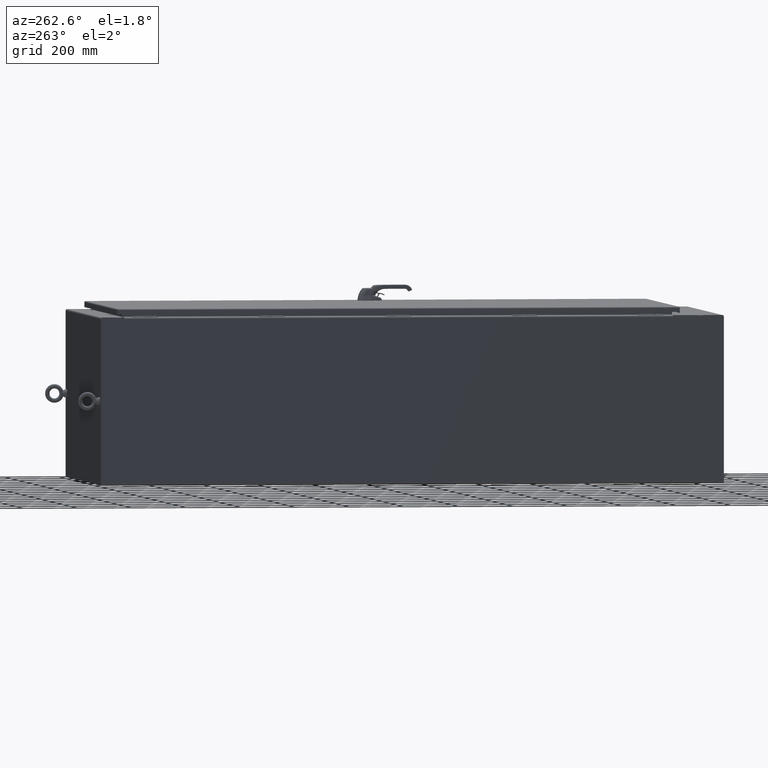
[diagram: clean part render]
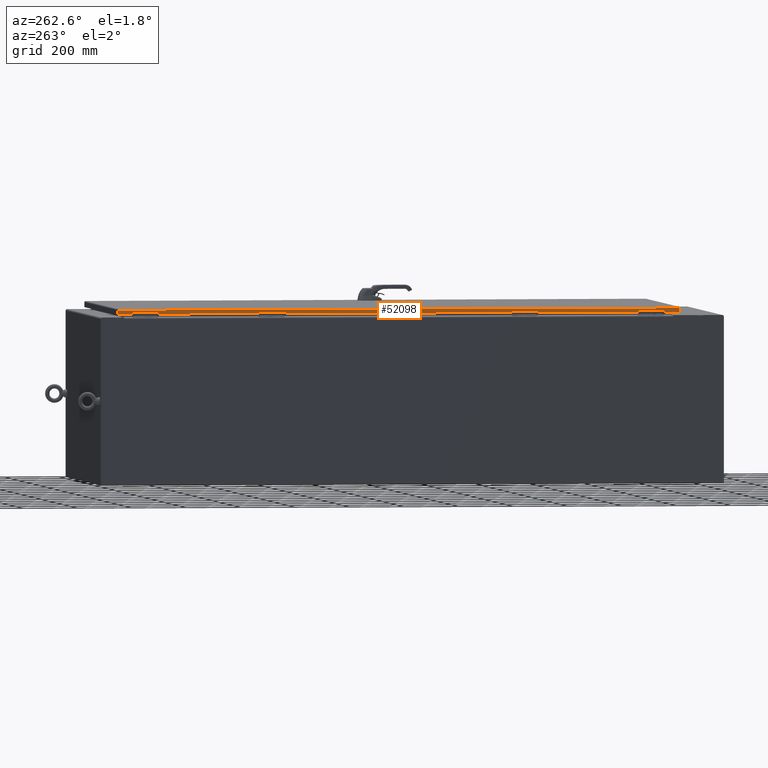
[diagram: same view with one face highlighted and labeled with its STEP entity id]
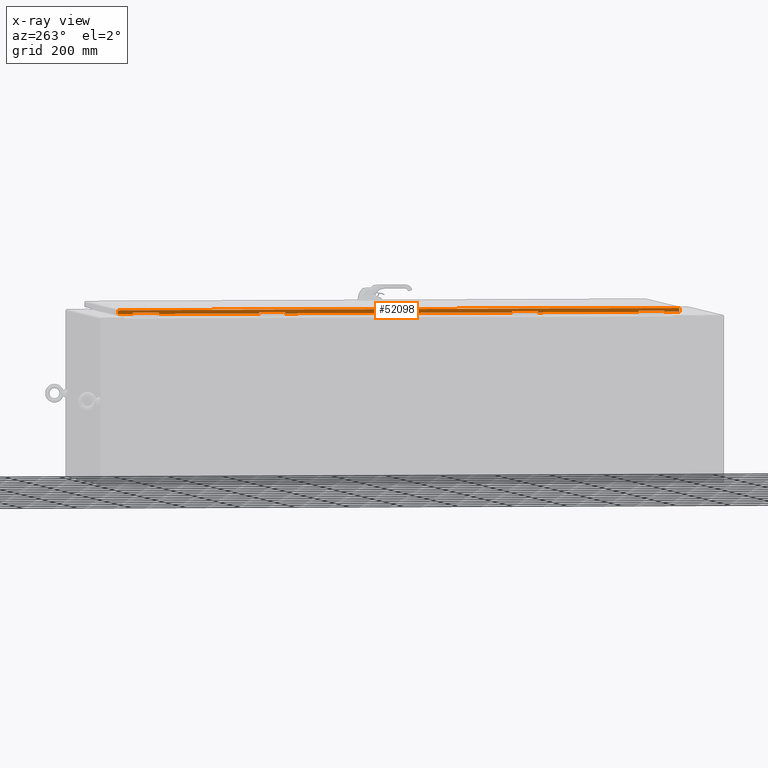
[diagram: x-ray of the same camera — body ghosted, the highlighted face saturated]
A machine part, auxiliary view. The second image highlights one B-rep face of the part: STEP entity #52098.
The next image is the same camera in x-ray: the body ghosted, the highlighted face saturated — about 0% of this face is hidden behind the body in this view.
In plain terms, the highlighted planar face has unit normal (-1, 0, -0).
Its self-contained STEP definition (entity closure, byte-faithful):
#3565=PLANE('',#57366);
#5111=FACE_OUTER_BOUND('',#8391,.T.);
#8391=EDGE_LOOP('',(#37602,#37603,#37604,#37605,#37606,#37607,#37608,#37609,
#37610,#37611,#37612,#37613,#37614,#37615,#37616,#37617,#37618,#37619,#37620,
#37621,#37622,#37623,#37624,#37625));
#11985=LINE('',#85243,#15640);
#11989=LINE('',#85251,#15644);
#11992=LINE('',#85257,#15647);
#11995=LINE('',#85264,#15650);
#11999=LINE('',#85272,#15654);
#12002=LINE('',#85278,#15657);
#12005=LINE('',#85285,#15660);
#12009=LINE('',#85293,#15664);
#12012=LINE('',#85299,#15667);
#12015=LINE('',#85306,#15670);
#12019=LINE('',#85314,#15674);
#12022=LINE('',#85320,#15677);
#12037=LINE('',#85347,#15692);
#12040=LINE('',#85352,#15695);
#12041=LINE('',#85354,#15696);
#12042=LINE('',#85356,#15697);
#12043=LINE('',#85360,#15698);
#12046=LINE('',#85364,#15701);
#12047=LINE('',#85367,#15702);
#12049=LINE('',#85370,#15704);
#12070=LINE('',#85440,#15725);
#12071=LINE('',#85443,#15726);
#12072=LINE('',#85445,#15727);
#12073=LINE('',#85446,#15728);
#15640=VECTOR('',#65726,0.393700787401575);
#15644=VECTOR('',#65732,0.393700787401575);
#15647=VECTOR('',#65737,0.393700787401575);
#15650=VECTOR('',#65742,0.393700787401575);
#15654=VECTOR('',#65748,0.393700787401575);
#15657=VECTOR('',#65753,0.393700787401575);
#15660=VECTOR('',#65758,0.393700787401575);
#15664=VECTOR('',#65764,0.393700787401575);
#15667=VECTOR('',#65769,0.393700787401575);
#15670=VECTOR('',#65774,0.393700787401575);
#15674=VECTOR('',#65780,0.393700787401575);
#15677=VECTOR('',#65785,0.393700787401575);
#15692=VECTOR('',#65804,0.393700787401575);
#15695=VECTOR('',#65809,0.393700787401575);
#15696=VECTOR('',#65812,0.393700787401575);
#15697=VECTOR('',#65815,0.393700787401575);
#15698=VECTOR('',#65818,0.393700787401575);
#15701=VECTOR('',#65823,0.393700787401575);
#15702=VECTOR('',#65826,0.393700787401575);
#15704=VECTOR('',#65830,0.393700787401575);
#15725=VECTOR('',#65903,0.393700787401575);
#15726=VECTOR('',#65906,0.393700787401575);
#15727=VECTOR('',#65907,0.393700787401575);
#15728=VECTOR('',#65908,0.393700787401575);
#22429=VERTEX_POINT('',#85241);
#22430=VERTEX_POINT('',#85242);
#22433=VERTEX_POINT('',#85250);
#22435=VERTEX_POINT('',#85256);
#22437=VERTEX_POINT('',#85262);
#22438=VERTEX_POINT('',#85263);
#22441=VERTEX_POINT('',#85271);
#22443=VERTEX_POINT('',#85277);
#22445=VERTEX_POINT('',#85283);
#22446=VERTEX_POINT('',#85284);
#22449=VERTEX_POINT('',#85292);
#22451=VERTEX_POINT('',#85298);
#22453=VERTEX_POINT('',#85304);
#22454=VERTEX_POINT('',#85305);
#22457=VERTEX_POINT('',#85313);
#22459=VERTEX_POINT('',#85319);
#22469=VERTEX_POINT('',#85346);
#22470=VERTEX_POINT('',#85350);
#22471=VERTEX_POINT('',#85358);
#22472=VERTEX_POINT('',#85359);
#22473=VERTEX_POINT('',#85366);
#22496=VERTEX_POINT('',#85438);
#22497=VERTEX_POINT('',#85442);
#22498=VERTEX_POINT('',#85444);
#27897=EDGE_CURVE('',#22429,#22430,#11985,.T.);
#27901=EDGE_CURVE('',#22433,#22429,#11989,.T.);
#27904=EDGE_CURVE('',#22430,#22435,#11992,.T.);
#27907=EDGE_CURVE('',#22437,#22438,#11995,.T.);
#27911=EDGE_CURVE('',#22441,#22437,#11999,.T.);
#27914=EDGE_CURVE('',#22438,#22443,#12002,.T.);
#27917=EDGE_CURVE('',#22445,#22446,#12005,.T.);
#27921=EDGE_CURVE('',#22449,#22445,#12009,.T.);
#27924=EDGE_CURVE('',#22446,#22451,#12012,.T.);
#27927=EDGE_CURVE('',#22453,#22454,#12015,.T.);
#27931=EDGE_CURVE('',#22457,#22453,#12019,.T.);
#27934=EDGE_CURVE('',#22454,#22459,#12022,.T.);
#27949=EDGE_CURVE('',#22469,#22433,#12037,.T.);
#27952=EDGE_CURVE('',#22459,#22470,#12040,.T.);
#27953=EDGE_CURVE('',#22451,#22457,#12041,.T.);
#27954=EDGE_CURVE('',#22443,#22449,#12042,.T.);
#27955=EDGE_CURVE('',#22471,#22472,#12043,.T.);
#27958=EDGE_CURVE('',#22470,#22471,#12046,.T.);
#27959=EDGE_CURVE('',#22472,#22473,#12047,.T.);
#27961=EDGE_CURVE('',#22435,#22441,#12049,.T.);
#27996=EDGE_CURVE('',#22473,#22496,#12070,.T.);
#27997=EDGE_CURVE('',#22497,#22496,#12071,.T.);
#27998=EDGE_CURVE('',#22497,#22498,#12072,.T.);
#27999=EDGE_CURVE('',#22469,#22498,#12073,.T.);
#37602=ORIENTED_EDGE('',*,*,#27904,.T.);
#37603=ORIENTED_EDGE('',*,*,#27961,.T.);
#37604=ORIENTED_EDGE('',*,*,#27911,.T.);
#37605=ORIENTED_EDGE('',*,*,#27907,.T.);
#37606=ORIENTED_EDGE('',*,*,#27914,.T.);
#37607=ORIENTED_EDGE('',*,*,#27954,.T.);
#37608=ORIENTED_EDGE('',*,*,#27921,.T.);
#37609=ORIENTED_EDGE('',*,*,#27917,.T.);
#37610=ORIENTED_EDGE('',*,*,#27924,.T.);
#37611=ORIENTED_EDGE('',*,*,#27953,.T.);
#37612=ORIENTED_EDGE('',*,*,#27931,.T.);
#37613=ORIENTED_EDGE('',*,*,#27927,.T.);
#37614=ORIENTED_EDGE('',*,*,#27934,.T.);
#37615=ORIENTED_EDGE('',*,*,#27952,.T.);
#37616=ORIENTED_EDGE('',*,*,#27958,.T.);
#37617=ORIENTED_EDGE('',*,*,#27955,.T.);
#37618=ORIENTED_EDGE('',*,*,#27959,.T.);
#37619=ORIENTED_EDGE('',*,*,#27996,.T.);
#37620=ORIENTED_EDGE('',*,*,#27997,.F.);
#37621=ORIENTED_EDGE('',*,*,#27998,.T.);
#37622=ORIENTED_EDGE('',*,*,#27999,.F.);
#37623=ORIENTED_EDGE('',*,*,#27949,.T.);
#37624=ORIENTED_EDGE('',*,*,#27901,.T.);
#37625=ORIENTED_EDGE('',*,*,#27897,.T.);
#52098=ADVANCED_FACE('',(#5111),#3565,.T.);
#57366=AXIS2_PLACEMENT_3D('',#85441,#65904,#65905);
#65726=DIRECTION('',(2.74793580351904E-16,-1.,3.49174387004674E-16));
#65732=DIRECTION('',(-2.30090906336254E-14,3.44654981345447E-17,1.));
#65737=DIRECTION('',(2.30090906336254E-14,-3.44654981345447E-17,-1.));
#65742=DIRECTION('',(2.74793580351904E-16,-1.,3.49174387004674E-16));
#65748=DIRECTION('',(-2.30090906336254E-14,3.44654981345447E-17,1.));
#65753=DIRECTION('',(2.30090906336254E-14,-3.44654981345447E-17,-1.));
#65758=DIRECTION('',(2.74793580351904E-16,-1.,3.49174387004674E-16));
#65764=DIRECTION('',(-2.30090906336254E-14,3.44654981345447E-17,1.));
#65769=DIRECTION('',(2.30090906336254E-14,-3.44654981345447E-17,-1.));
#65774=DIRECTION('',(2.74793580351904E-16,-1.,3.49174387004674E-16));
#65780=DIRECTION('',(-2.30090906336254E-14,3.44654981345447E-17,1.));
#65785=DIRECTION('',(2.30090906336254E-14,-3.44654981345447E-17,-1.));
#65804=DIRECTION('',(2.7479358035191E-16,-1.,9.37030730533105E-17));
#65809=DIRECTION('',(2.7479358035191E-16,-1.,9.37030730533105E-17));
#65812=DIRECTION('',(2.7479358035191E-16,-1.,9.37030730533105E-17));
#65815=DIRECTION('',(2.7479358035191E-16,-1.,9.37030730533105E-17));
#65818=DIRECTION('',(2.74793580351904E-16,-1.,3.49174387004674E-16));
#65823=DIRECTION('',(-2.30090906336254E-14,3.44654981345447E-17,1.));
#65826=DIRECTION('',(2.30090906336254E-14,-3.44654981345447E-17,-1.));
#65830=DIRECTION('',(2.7479358035191E-16,-1.,9.37030730533105E-17));
#65903=DIRECTION('',(2.7479358035191E-16,-1.,9.37030730533105E-17));
#65904=DIRECTION('center_axis',(-1.,-2.74793580351912E-16,-2.30090906336254E-14));
#65905=DIRECTION('ref_axis',(-2.30090906336254E-14,-2.75014424136383E-16,
1.));
#65906=DIRECTION('',(2.30314065722459E-14,6.31088724176809E-30,-1.));
#65907=DIRECTION('',(-2.74793580351912E-16,1.,5.08634298896052E-33));
#65908=DIRECTION('',(-2.30314065722459E-14,-6.31088724176809E-30,1.));
#85241=CARTESIAN_POINT('',(-18.40625,38.4375,-0.45849999999961));
#85242=CARTESIAN_POINT('',(-18.40625,34.6875,-0.458499999999609));
#85243=CARTESIAN_POINT('',(-18.40625,19.21875,-0.458499999999603));
#85250=CARTESIAN_POINT('',(-18.40625,38.4375,-0.64599999999961));
#85251=CARTESIAN_POINT('',(-18.40625,38.4375,-0.487267101633959));
#85256=CARTESIAN_POINT('',(-18.40625,34.6875,-0.645999999999609));
#85257=CARTESIAN_POINT('',(-18.40625,34.6875,-0.393517101633959));
#85262=CARTESIAN_POINT('',(-18.40625,20.15625,-0.458499999999709));
#85263=CARTESIAN_POINT('',(-18.40625,16.40625,-0.458499999999707));
#85264=CARTESIAN_POINT('',(-18.40625,10.078125,-0.458499999999705));
#85271=CARTESIAN_POINT('',(-18.40625,20.15625,-0.645999999999708));
#85272=CARTESIAN_POINT('',(-18.40625,20.15625,-0.487267101634008));
#85277=CARTESIAN_POINT('',(-18.40625,16.40625,-0.645999999999708));
#85278=CARTESIAN_POINT('',(-18.40625,16.40625,-0.393517101634008));
#85283=CARTESIAN_POINT('',(-18.40625,1.875,-0.458499999999807));
#85284=CARTESIAN_POINT('',(-18.40625,-1.875,-0.458499999999806));
#85285=CARTESIAN_POINT('',(-18.40625,0.937500000000001,-0.458499999999807));
#85292=CARTESIAN_POINT('',(-18.40625,1.875,-0.645999999999807));
#85293=CARTESIAN_POINT('',(-18.40625,1.875,-0.487267101634057));
#85298=CARTESIAN_POINT('',(-18.40625,-1.875,-0.645999999999807));
#85299=CARTESIAN_POINT('',(-18.40625,-1.875,-0.393517101634057));
#85304=CARTESIAN_POINT('',(-18.40625,-16.40625,-0.458499999999906));
#85305=CARTESIAN_POINT('',(-18.40625,-20.15625,-0.458499999999905));
#85306=CARTESIAN_POINT('',(-18.40625,-8.203125,-0.458499999999909));
#85313=CARTESIAN_POINT('',(-18.40625,-16.40625,-0.645999999999906));
#85314=CARTESIAN_POINT('',(-18.40625,-16.40625,-0.487267101634106));
#85319=CARTESIAN_POINT('',(-18.40625,-20.15625,-0.645999999999905));
#85320=CARTESIAN_POINT('',(-18.40625,-20.15625,-0.393517101634106));
#85346=CARTESIAN_POINT('',(-18.40625,40.5827928932188,-0.646000000000011));
#85347=CARTESIAN_POINT('',(-18.40625,-20.2913964466094,-0.646000000000005));
#85350=CARTESIAN_POINT('',(-18.40625,-34.6875,-0.646000000000004));
#85352=CARTESIAN_POINT('',(-18.40625,-20.2913964466094,-0.646000000000005));
#85354=CARTESIAN_POINT('',(-18.40625,-20.2913964466094,-0.646000000000005));
#85356=CARTESIAN_POINT('',(-18.40625,-20.2913964466094,-0.646000000000005));
#85358=CARTESIAN_POINT('',(-18.40625,-34.6875,-0.458500000000005));
#85359=CARTESIAN_POINT('',(-18.40625,-38.4375,-0.458500000000003));
#85360=CARTESIAN_POINT('',(-18.40625,-17.34375,-0.458500000000011));
#85364=CARTESIAN_POINT('',(-18.40625,-34.6875,-0.487267101634155));
#85366=CARTESIAN_POINT('',(-18.40625,-38.4375,-0.646000000000004));
#85367=CARTESIAN_POINT('',(-18.40625,-38.4375,-0.393517101634155));
#85370=CARTESIAN_POINT('',(-18.40625,-20.2913964466094,-0.646000000000005));
#85438=CARTESIAN_POINT('',(-18.40625,-40.5827928932188,-0.646000000000003));
#85440=CARTESIAN_POINT('',(-18.40625,-20.2913964466094,-0.646000000000005));
#85441=CARTESIAN_POINT('Origin',(-18.40625,1.68478584350674E-15,-0.328534203268308));
#85442=CARTESIAN_POINT('',(-18.40625,-40.5827928932188,-0.093750000000007));
#85443=CARTESIAN_POINT('',(-18.40625,-40.5827928932188,-0.093750000000007));
#85444=CARTESIAN_POINT('',(-18.40625,40.5827928932188,-0.0937500000000098));
#85445=CARTESIAN_POINT('',(-18.40625,8.15208047989879E-16,-0.0937500000000014));
#85446=CARTESIAN_POINT('',(-18.40625,40.5827928932188,-0.0937500000000098));